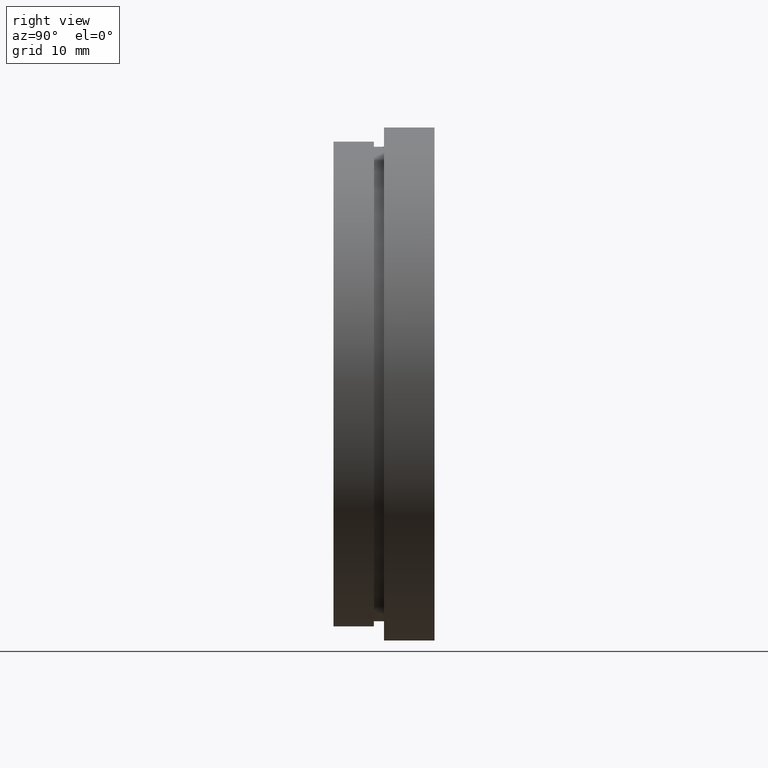
[diagram: clean part render]
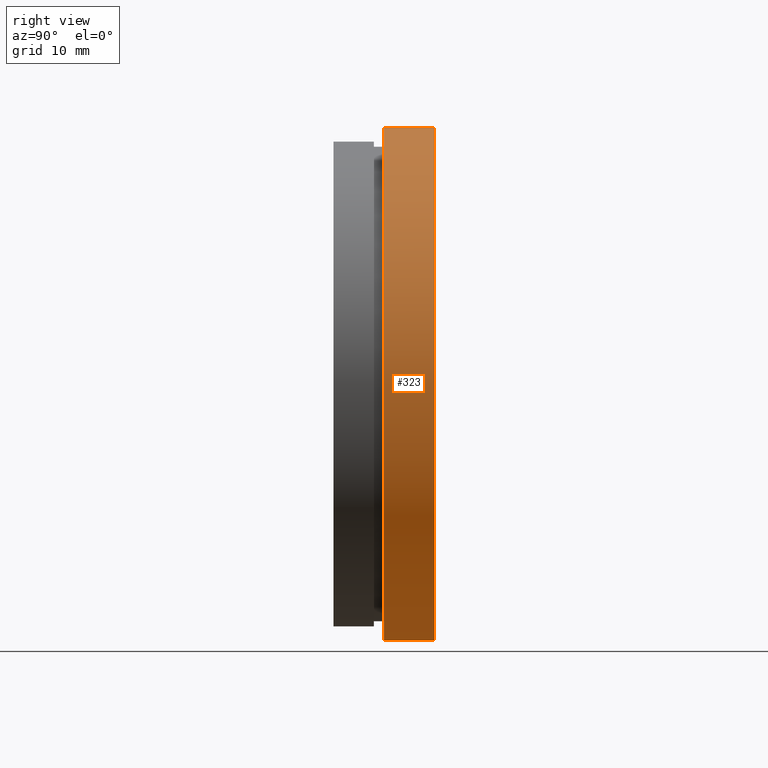
[diagram: same view with one face highlighted and labeled with its STEP entity id]
A machine part, right view. The second image highlights one B-rep face of the part: STEP entity #323.
In plain terms, the highlighted cylindrical surface (partial cylindrical patch) has radius 25.4 mm, axis along (-0, 1, -0).
Its self-contained STEP definition (entity closure, byte-faithful):
#1 = DIRECTION ( 'NONE',  ( 0.0000000000000000000, 0.0000000000000000000, 1.000000000000000000 ) ) ;
#40 = CIRCLE ( 'NONE', #296, 25.39999999999999900 ) ;
#48 = CARTESIAN_POINT ( 'NONE',  ( 0.0000000000000000000, 9.999999999999998200, 0.0000000000000000000 ) ) ;
#70 = ORIENTED_EDGE ( 'NONE', *, *, #287, .F. ) ;
#103 = CARTESIAN_POINT ( 'NONE',  ( 0.0000000000000000000, 9.999999999999998200, 25.39999999999999900 ) ) ;
#170 = DIRECTION ( 'NONE',  ( -0.0000000000000000000, 1.000000000000000000, -0.0000000000000000000 ) ) ;
#174 = VERTEX_POINT ( 'NONE', #353 ) ;
#195 = ORIENTED_EDGE ( 'NONE', *, *, #563, .F. ) ;
#211 = CARTESIAN_POINT ( 'NONE',  ( 0.0000000000000000000, 13.74468085106383300, 0.0000000000000000000 ) ) ;
#235 = CARTESIAN_POINT ( 'NONE',  ( 0.0000000000000000000, 13.74468085106383300, 25.39999999999999900 ) ) ;
#236 = DIRECTION ( 'NONE',  ( 0.0000000000000000000, 0.0000000000000000000, 1.000000000000000000 ) ) ;
#255 = DIRECTION ( 'NONE',  ( -0.0000000000000000000, 1.000000000000000000, -0.0000000000000000000 ) ) ;
#256 = ORIENTED_EDGE ( 'NONE', *, *, #320, .T. ) ;
#260 = EDGE_LOOP ( 'NONE', ( #256, #430, #195, #70 ) ) ;
#263 = DIRECTION ( 'NONE',  ( -0.0000000000000000000, 1.000000000000000000, -0.0000000000000000000 ) ) ;
#287 = EDGE_CURVE ( 'NONE', #535, #348, #316, .T. ) ;
#291 = DIRECTION ( 'NONE',  ( -0.0000000000000000000, 1.000000000000000000, -0.0000000000000000000 ) ) ;
#296 = AXIS2_PLACEMENT_3D ( 'NONE', #484, #263, #1 ) ;
#300 = AXIS2_PLACEMENT_3D ( 'NONE', #48, #302, #236 ) ;
#302 = DIRECTION ( 'NONE',  ( -0.0000000000000000000, 1.000000000000000000, -0.0000000000000000000 ) ) ;
#316 = LINE ( 'NONE', #235, #431 ) ;
#320 = EDGE_CURVE ( 'NONE', #535, #174, #40, .T. ) ;
#323 = ADVANCED_FACE ( 'NONE', ( #471 ), #612, .T. ) ;
#338 = CARTESIAN_POINT ( 'NONE',  ( 3.110602869834276900E-015, 13.74468085106383300, -25.39999999999999900 ) ) ;
#348 = VERTEX_POINT ( 'NONE', #103 ) ;
#353 = CARTESIAN_POINT ( 'NONE',  ( 3.110602869834276900E-015, 5.000000000000000900, -25.39999999999999900 ) ) ;
#373 = CARTESIAN_POINT ( 'NONE',  ( 3.110602869834276900E-015, 9.999999999999998200, -25.39999999999999900 ) ) ;
#386 = AXIS2_PLACEMENT_3D ( 'NONE', #211, #255, #537 ) ;
#394 = VERTEX_POINT ( 'NONE', #373 ) ;
#430 = ORIENTED_EDGE ( 'NONE', *, *, #514, .T. ) ;
#431 = VECTOR ( 'NONE', #170, 1000.000000000000000 ) ;
#444 = CIRCLE ( 'NONE', #300, 25.39999999999999900 ) ;
#471 = FACE_OUTER_BOUND ( 'NONE', #260, .T. ) ;
#484 = CARTESIAN_POINT ( 'NONE',  ( 0.0000000000000000000, 5.000000000000000900, 0.0000000000000000000 ) ) ;
#488 = LINE ( 'NONE', #338, #529 ) ;
#514 = EDGE_CURVE ( 'NONE', #174, #394, #488, .T. ) ;
#529 = VECTOR ( 'NONE', #291, 1000.000000000000000 ) ;
#535 = VERTEX_POINT ( 'NONE', #570 ) ;
#537 = DIRECTION ( 'NONE',  ( 0.0000000000000000000, 0.0000000000000000000, 1.000000000000000000 ) ) ;
#563 = EDGE_CURVE ( 'NONE', #348, #394, #444, .T. ) ;
#570 = CARTESIAN_POINT ( 'NONE',  ( 0.0000000000000000000, 5.000000000000000900, 25.39999999999999900 ) ) ;
#612 = CYLINDRICAL_SURFACE ( 'NONE', #386, 25.39999999999999900 ) ;